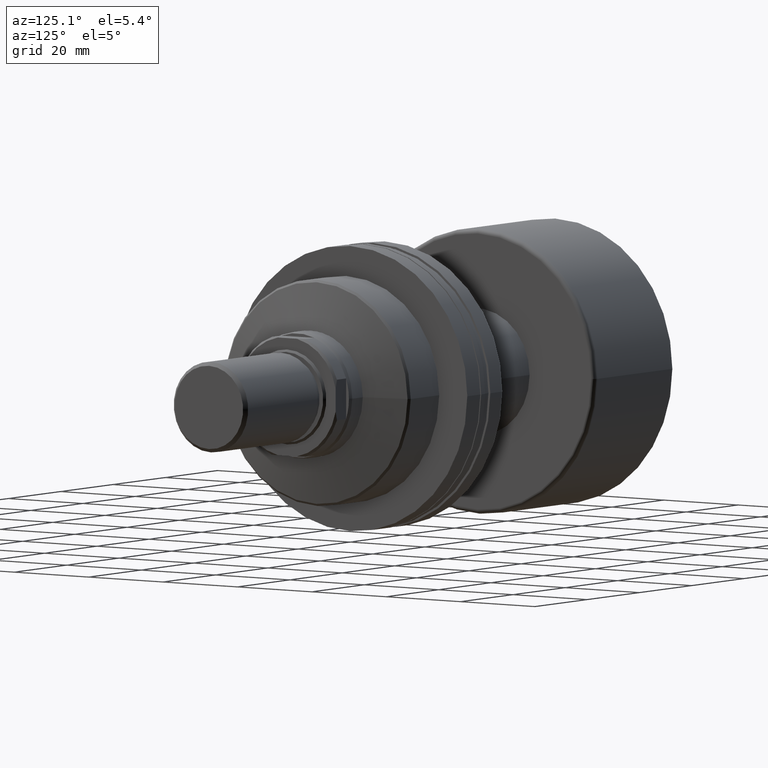
[diagram: clean part render]
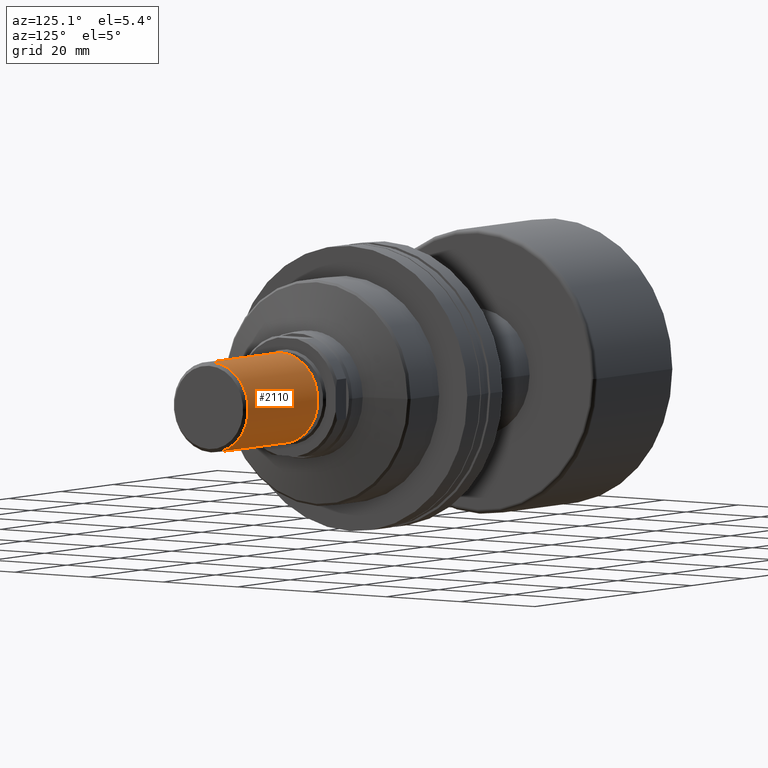
[diagram: same view with one face highlighted and labeled with its STEP entity id]
A machine part, auxiliary view. The second image highlights one B-rep face of the part: STEP entity #2110.
In plain terms, the highlighted cylindrical surface (partial cylindrical patch) has radius 10 mm, axis along (1, 0, -0).
Its self-contained STEP definition (entity closure, byte-faithful):
#17 = CARTESIAN_POINT ( 'NONE',  ( 10.00000000000000000, 1.224646799147353256E-15, 27.50000000000000000 ) ) ;
#43 = DIRECTION ( 'NONE',  ( -1.000000000000000000, 0.000000000000000000, 0.000000000000000000 ) ) ;
#102 = AXIS2_PLACEMENT_3D ( 'NONE', #2267, #2281, #109 ) ;
#109 = DIRECTION ( 'NONE',  ( 1.000000000000000000, 0.000000000000000000, 0.000000000000000000 ) ) ;
#152 = EDGE_CURVE ( 'NONE', #2431, #1006, #2490, .T. ) ;
#154 = VERTEX_POINT ( 'NONE', #2022 ) ;
#155 = DIRECTION ( 'NONE',  ( 0.000000000000000000, 0.000000000000000000, 1.000000000000000000 ) ) ;
#169 = VECTOR ( 'NONE', #971, 1000.000000000000000 ) ;
#231 = EDGE_LOOP ( 'NONE', ( #1161, #1172, #744, #1739 ) ) ;
#238 = CARTESIAN_POINT ( 'NONE',  ( 10.00000000000000000, 1.224646799147353256E-15, 0.7999999999999986011 ) ) ;
#365 = CARTESIAN_POINT ( 'NONE',  ( -10.00000000000000000, 0.000000000000000000, 27.50000000000000000 ) ) ;
#381 = EDGE_CURVE ( 'NONE', #154, #1326, #1422, .T. ) ;
#581 = LINE ( 'NONE', #365, #169 ) ;
#666 = VECTOR ( 'NONE', #1254, 1000.000000000000000 ) ;
#744 = ORIENTED_EDGE ( 'NONE', *, *, #152, .T. ) ;
#791 = AXIS2_PLACEMENT_3D ( 'NONE', #2080, #155, #1012 ) ;
#971 = DIRECTION ( 'NONE',  ( -0.000000000000000000, -0.000000000000000000, -1.000000000000000000 ) ) ;
#1006 = VERTEX_POINT ( 'NONE', #2664 ) ;
#1012 = DIRECTION ( 'NONE',  ( 1.000000000000000000, 0.000000000000000000, 0.000000000000000000 ) ) ;
#1147 = FACE_OUTER_BOUND ( 'NONE', #231, .T. ) ;
#1161 = ORIENTED_EDGE ( 'NONE', *, *, #381, .F. ) ;
#1168 = CYLINDRICAL_SURFACE ( 'NONE', #1337, 10.00000000000000000 ) ;
#1172 = ORIENTED_EDGE ( 'NONE', *, *, #2711, .T. ) ;
#1254 = DIRECTION ( 'NONE',  ( -0.000000000000000000, -0.000000000000000000, -1.000000000000000000 ) ) ;
#1326 = VERTEX_POINT ( 'NONE', #2338 ) ;
#1337 = AXIS2_PLACEMENT_3D ( 'NONE', #1976, #2451, #43 ) ;
#1422 = CIRCLE ( 'NONE', #791, 10.00000000000000000 ) ;
#1739 = ORIENTED_EDGE ( 'NONE', *, *, #1809, .F. ) ;
#1809 = EDGE_CURVE ( 'NONE', #1326, #1006, #581, .T. ) ;
#1937 = LINE ( 'NONE', #17, #666 ) ;
#1976 = CARTESIAN_POINT ( 'NONE',  ( 0.000000000000000000, 0.000000000000000000, 27.50000000000000000 ) ) ;
#2022 = CARTESIAN_POINT ( 'NONE',  ( 10.00000000000000000, 1.224646799147353256E-15, 27.50000000000000000 ) ) ;
#2080 = CARTESIAN_POINT ( 'NONE',  ( 0.000000000000000000, 0.000000000000000000, 27.50000000000000000 ) ) ;
#2110 = ADVANCED_FACE ( 'NONE', ( #1147 ), #1168, .T. ) ;
#2267 = CARTESIAN_POINT ( 'NONE',  ( 0.000000000000000000, 0.000000000000000000, 0.7999999999999986011 ) ) ;
#2281 = DIRECTION ( 'NONE',  ( -0.000000000000000000, -0.000000000000000000, 1.000000000000000000 ) ) ;
#2338 = CARTESIAN_POINT ( 'NONE',  ( -10.00000000000000000, 0.000000000000000000, 27.50000000000000000 ) ) ;
#2431 = VERTEX_POINT ( 'NONE', #238 ) ;
#2451 = DIRECTION ( 'NONE',  ( -0.000000000000000000, -0.000000000000000000, -1.000000000000000000 ) ) ;
#2490 = CIRCLE ( 'NONE', #102, 10.00000000000000000 ) ;
#2664 = CARTESIAN_POINT ( 'NONE',  ( -10.00000000000000000, 0.000000000000000000, 0.7999999999999986011 ) ) ;
#2711 = EDGE_CURVE ( 'NONE', #154, #2431, #1937, .T. ) ;